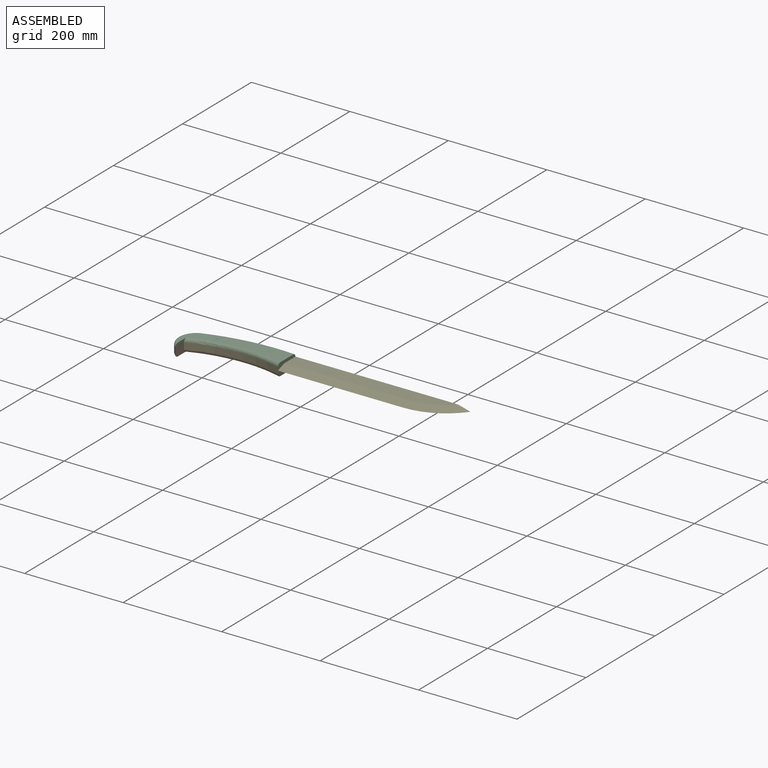
[diagram: assembled view]
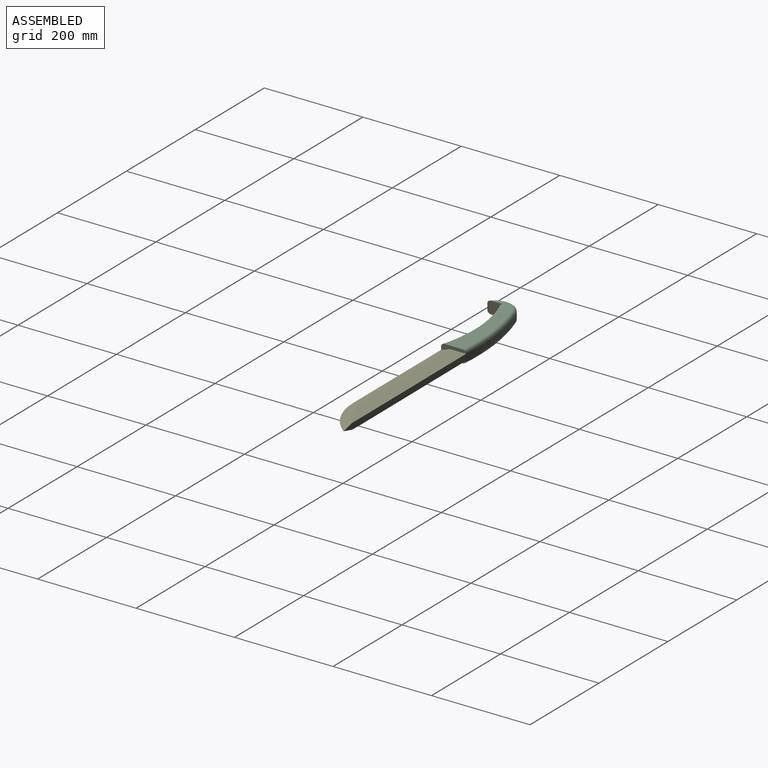
[diagram: assembled view, second angle]
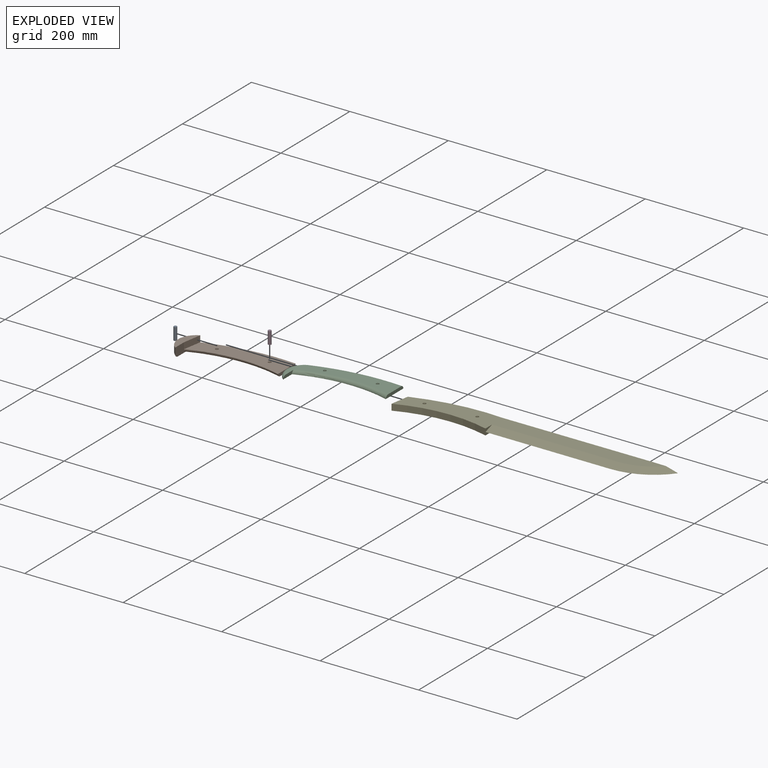
[diagram: exploded view]
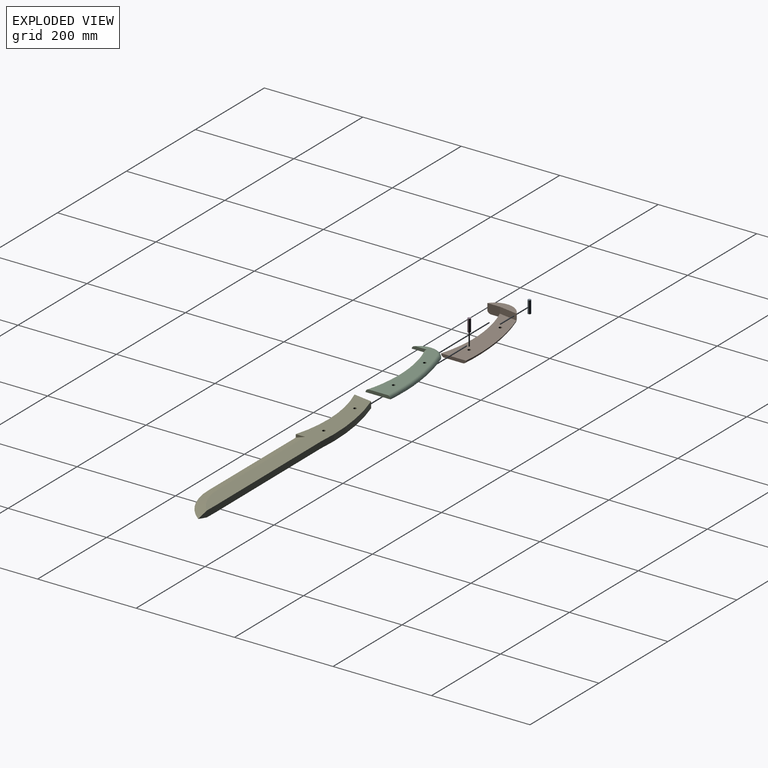
[diagram: exploded view, second angle]
ASSEMBLY  parts=5 mates=2
PART A: 3 faces, bbox 6.4x6.4x25.4 mm
  f0: cylinder r=3.17mm len=25.4mm, axis (0,0,-1), area 506.7mm2, adj f1,f2
  f1: plane 6.35x6.35mm, normal (0,0,1), area 31.7mm2, adj f0
  f2: plane 6.35x6.35mm, normal (0,0,-1), area 31.7mm2, adj f0
PART B: 12 faces, bbox 211.9x125.4x19.1 mm
  f0: plane 50.8x6.35mm, normal (1,0,0), area 304.9mm2, adj f3,f4,f9,f11
  f1: cylinder r=3.17mm len=6.35mm, axis (0,0,-1), area 126.7mm2, adj f3,f4
  f2: cylinder r=3.17mm len=6.35mm, axis (0,0,-1), area 126.7mm2, adj f3,f4
  f3: plane 184.04x61.86mm, normal (0,0,1), area 7130.9mm2, adj f0,f1,f2,f7,f9,f11
  f4: plane 192.81x72.52mm, normal (0,0,-1), area 5111.8mm2, adj f0,f1,f2,f5,f9,f10,f11
  f5: plane 32.24x19.05mm, normal (1,0,0), area 482.2mm2, adj f4,f6,f7,f8,f10,f11
  f6: cylinder r=37.12mm len=63.5mm, axis (0,0,1), area 975.1mm2, adj f5,f7,f8,f10
  f7: plane 38.1x12.7mm, normal (0.99,-0.16,0), area 490.3mm2, adj f3,f5,f6,f8
  f8: plane 63.5x21.36mm, normal (0,0,1), area 740.3mm2, adj f5,f6,f7
  f9: torus R=426.44mm, axis (0,0,1), area 1791.4mm2, adj f0,f3,f4,f10
  f10: torus R=30.77mm, axis (0,0,1), area 699.5mm2, adj f4,f5,f6,f9
  f11: torus R=287.24mm, axis (0,0,1), area 1872.3mm2, adj f0,f3,f4,f5
PART C: 9 faces, bbox 210.6x125.4x10.9 mm
  f0: plane 50.8x6.35mm, normal (1,0,0), area 304.9mm2, adj f4,f5,f6,f8
  f1: plane 32.24x6.35mm, normal (1,0,0), area 159.6mm2, adj f4,f5,f6,f7
  f2: cylinder r=3.17mm len=6.35mm, axis (0,0,-1), area 126.7mm2, adj f4,f5
  f3: cylinder r=3.17mm len=6.35mm, axis (0,0,-1), area 126.7mm2, adj f4,f5
  f4: plane 192.81x72.52mm, normal (0,0,1), area 5111.8mm2, adj f0,f1,f2,f3,f6,f7,f8
  f5: plane 199.16x87.26mm, normal (0,0,-1), area 7871.2mm2, adj f0,f1,f2,f3,f6,f7,f8
  f6: torus R=287.24mm, axis (0,0,1), area 1872.3mm2, adj f0,f1,f4,f5
  f7: torus R=30.77mm, axis (0,0,1), area 699.5mm2, adj f1,f4,f5,f8
  f8: torus R=426.44mm, axis (0,0,1), area 1790.9mm2, adj f0,f4,f5,f7
PART D: same geometry as A
PART E: 15 faces, bbox 539.6x71.8x12.7 mm
  f0: plane 50.85x12.7mm, normal (0.02,1,0), area 491.9mm2, adj f1,f2,f4,f5,f14
  f1: plane 514.95x61.86mm, normal (0,0,1), area 17024.3mm2, adj f0,f3,f4,f8,f9,f10,f11,f12
  f2: plane 514.95x61.86mm, normal (0,0,-1), area 17024.3mm2, adj f0,f5,f6,f7,f9,f10,f11,f12
  f3: plane 254x19.05mm, normal (0,-0.32,0.95), area 5100.4mm2, adj f1,f4,f6,f8
  f4: cone r=107.95mm half-angle=71.6deg, axis (0,0,-1), area 2044.7mm2, adj f0,f1,f3,f5
  f5: cone r=127mm half-angle=71.6deg, axis (0,0,1), area 2044.7mm2, adj f0,f2,f4,f6
  f6: plane 254x19.05mm, normal (0,-0.32,-0.95), area 5100.4mm2, adj f2,f3,f5,f7
  f7: plane 19.05x6.35mm, normal (1,0,0), area 60.5mm2, adj f2,f6,f12
  f8: plane 19.05x6.35mm, normal (1,0,0), area 60.5mm2, adj f1,f3,f12
  f9: cylinder r=432.79mm len=177.8mm, axis (0,0,-1), area 2292.2mm2, adj f1,f2,f10,f14
  f10: plane 38.1x12.7mm, normal (-0.99,0.16,0), area 490.3mm2, adj f1,f2,f9,f12
  f11: cylinder r=3.17mm len=12.7mm, axis (0,0,-1), area 253.4mm2, adj f1,f2
  f12: cylinder r=280.89mm len=184.04mm, axis (0,0,-1), area 2384.6mm2, adj f1,f2,f7,f8,f10
  f13: cylinder r=3.17mm len=12.7mm, axis (0,0,-1), area 253.4mm2, adj f1,f2
  f14: plane 304.75x12.7mm, normal (0,1,0), area 3870.4mm2, adj f0,f1,f2,f9
PLACE A t=(190.22,56.35,-146.7)mm
PLACE B t=(336.98,-51.45,-143.53)mm
PLACE C t=(338.61,60.9,-124.48)mm
PLACE D t=(291.85,64.36,-146.7)mm
PLACE E t=(359.83,58.5,-134)mm
MATE fastened B.f2 <-> D.f0  axis (0,0,-1) through (275.1,88.98,-146.7)mm
MATE fastened C.f3 <-> E.f11  axis (0,0,-1) through (275.1,88.98,-127.65)mm
